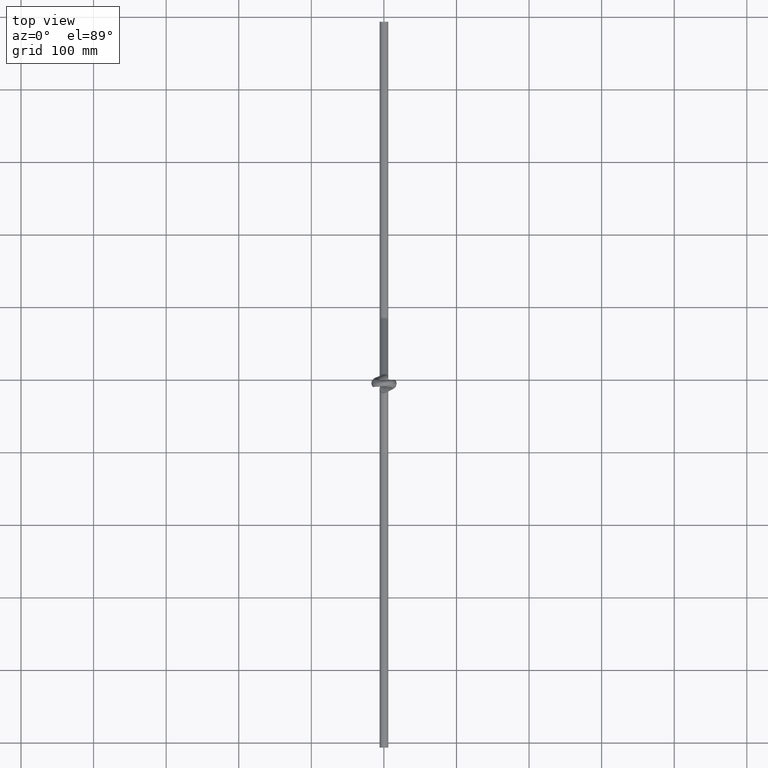
[diagram: clean part render]
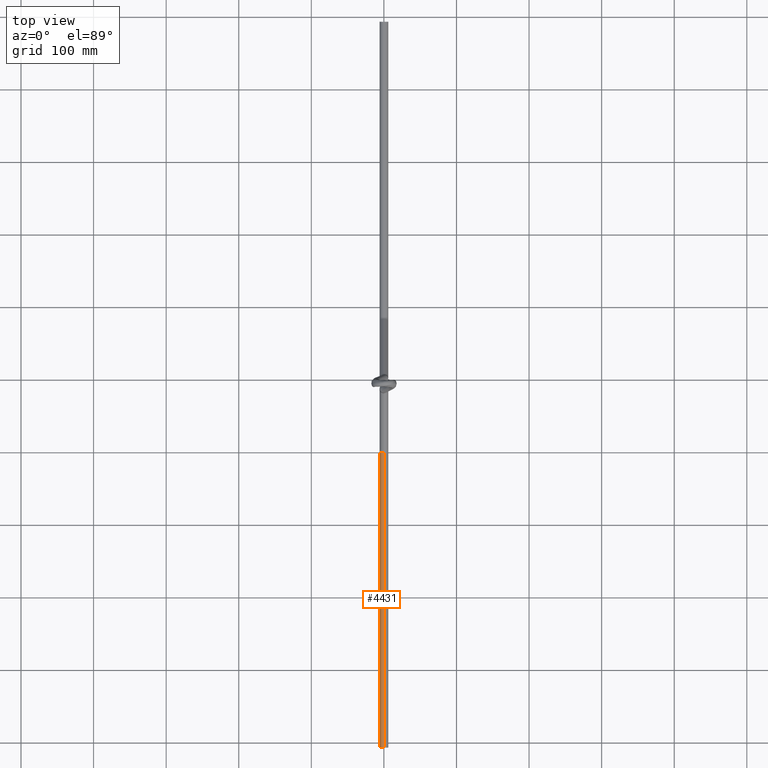
[diagram: same view with one face highlighted and labeled with its STEP entity id]
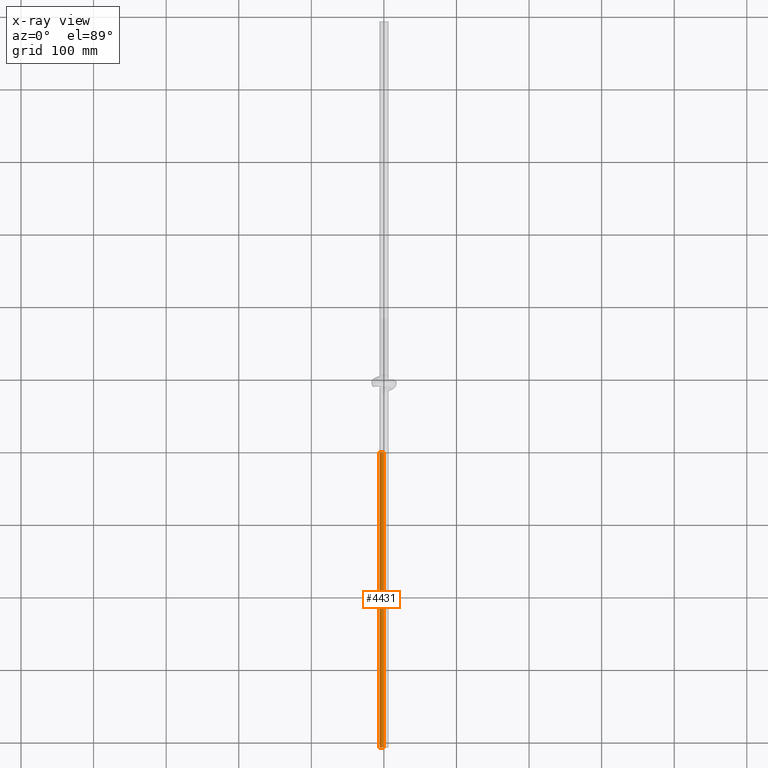
[diagram: x-ray of the same camera — body ghosted, the highlighted face saturated]
A machine part, top view. The second image highlights one B-rep face of the part: STEP entity #4431.
The next image is the same camera in x-ray: the body ghosted, the highlighted face saturated — about 0% of this face is hidden behind the body in this view.
In plain terms, the highlighted cylindrical surface (edge-blend (fillet) strip) has radius 6 mm, axis along (-0, -1, -0).
Its self-contained STEP definition (entity closure, byte-faithful):
#14 = DIRECTION ( 'NONE',  ( 0.0000000000000000000, 0.0000000000000000000, 1.000000000000000000 ) ) ;
#141 = VERTEX_POINT ( 'NONE', #2828 ) ;
#489 = DIRECTION ( 'NONE',  ( 0.0000000000000000000, 0.0000000000000000000, -1.000000000000000000 ) ) ;
#594 = ORIENTED_EDGE ( 'NONE', *, *, #5372, .F. ) ;
#809 = CARTESIAN_POINT ( 'NONE',  ( 0.0000000000000000000, -506.4999999999999400, -77.25000000000007100 ) ) ;
#834 = EDGE_CURVE ( 'NONE', #141, #1189, #3738, .T. ) ;
#1133 = DIRECTION ( 'NONE',  ( -0.0000000000000000000, -1.000000000000000000, -0.0000000000000000000 ) ) ;
#1189 = VERTEX_POINT ( 'NONE', #809 ) ;
#1314 = AXIS2_PLACEMENT_3D ( 'NONE', #7200, #3751, #14 ) ;
#1622 = ORIENTED_EDGE ( 'NONE', *, *, #834, .T. ) ;
#2211 = CARTESIAN_POINT ( 'NONE',  ( 7.347880794884125700E-016, -506.4999999999999400, -65.25000000000005700 ) ) ;
#2451 = VERTEX_POINT ( 'NONE', #2211 ) ;
#2510 = CARTESIAN_POINT ( 'NONE',  ( 0.0000000000000000000, -99.71999999999997000, -77.25000000000007100 ) ) ;
#2532 = DIRECTION ( 'NONE',  ( -0.0000000000000000000, -1.000000000000000000, -0.0000000000000000000 ) ) ;
#2596 = LINE ( 'NONE', #4243, #5688 ) ;
#2633 = DIRECTION ( 'NONE',  ( 0.0000000000000000000, 1.000000000000000000, 0.0000000000000000000 ) ) ;
#2828 = CARTESIAN_POINT ( 'NONE',  ( 0.0000000000000000000, -99.71999999999997000, -77.25000000000007100 ) ) ;
#3738 = LINE ( 'NONE', #2510, #5566 ) ;
#3751 = DIRECTION ( 'NONE',  ( 0.0000000000000000000, 1.000000000000000000, 0.0000000000000000000 ) ) ;
#3806 = CIRCLE ( 'NONE', #1314, 6.000000000000005300 ) ;
#3867 = EDGE_CURVE ( 'NONE', #6446, #2451, #2596, .T. ) ;
#3936 = FACE_OUTER_BOUND ( 'NONE', #5638, .T. ) ;
#4217 = DIRECTION ( 'NONE',  ( -0.0000000000000000000, -1.000000000000000000, -0.0000000000000000000 ) ) ;
#4243 = CARTESIAN_POINT ( 'NONE',  ( 7.347880794884125700E-016, -99.71999999999997000, -65.25000000000005700 ) ) ;
#4431 = ADVANCED_FACE ( 'NONE', ( #3936 ), #6953, .T. ) ;
#4772 = CIRCLE ( 'NONE', #5633, 6.000000000000005300 ) ;
#5043 = EDGE_CURVE ( 'NONE', #1189, #2451, #4772, .T. ) ;
#5372 = EDGE_CURVE ( 'NONE', #141, #6446, #3806, .T. ) ;
#5566 = VECTOR ( 'NONE', #2532, 1000.000000000000000 ) ;
#5633 = AXIS2_PLACEMENT_3D ( 'NONE', #6321, #2633, #6890 ) ;
#5638 = EDGE_LOOP ( 'NONE', ( #5660, #594, #1622, #6507 ) ) ;
#5660 = ORIENTED_EDGE ( 'NONE', *, *, #3867, .F. ) ;
#5688 = VECTOR ( 'NONE', #1133, 1000.000000000000000 ) ;
#5729 = CARTESIAN_POINT ( 'NONE',  ( 7.347880794884125700E-016, -99.71999999999997000, -65.25000000000005700 ) ) ;
#6321 = CARTESIAN_POINT ( 'NONE',  ( 0.0000000000000000000, -506.4999999999999400, -71.25000000000005700 ) ) ;
#6446 = VERTEX_POINT ( 'NONE', #5729 ) ;
#6507 = ORIENTED_EDGE ( 'NONE', *, *, #5043, .T. ) ;
#6890 = DIRECTION ( 'NONE',  ( 0.0000000000000000000, 0.0000000000000000000, 1.000000000000000000 ) ) ;
#6945 = AXIS2_PLACEMENT_3D ( 'NONE', #7721, #4217, #489 ) ;
#6953 = CYLINDRICAL_SURFACE ( 'NONE', #6945, 6.000000000000005300 ) ;
#7200 = CARTESIAN_POINT ( 'NONE',  ( 0.0000000000000000000, -99.71999999999997000, -71.25000000000005700 ) ) ;
#7721 = CARTESIAN_POINT ( 'NONE',  ( 0.0000000000000000000, -99.71999999999997000, -71.25000000000005700 ) ) ;